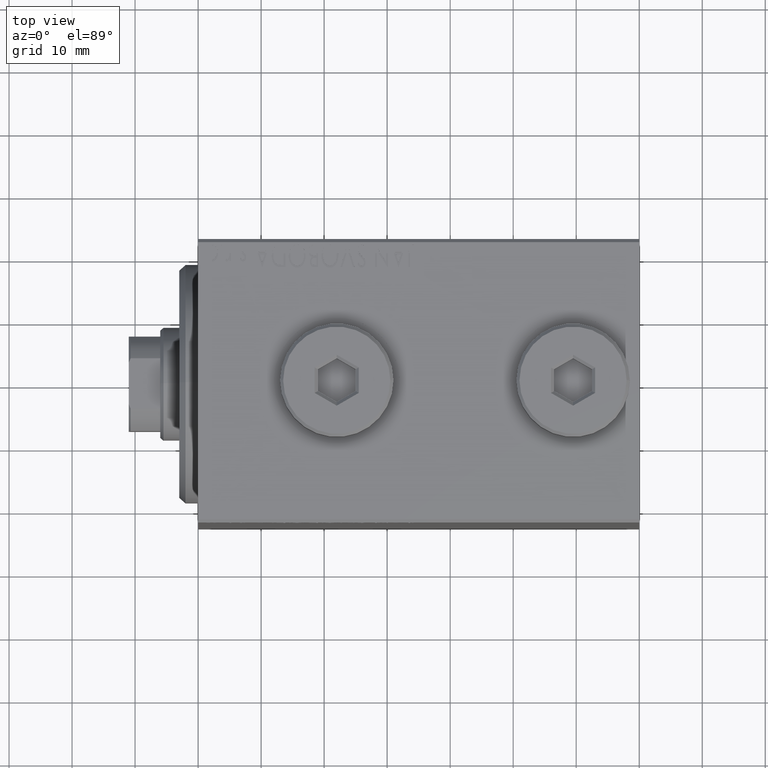
[diagram: clean part render]
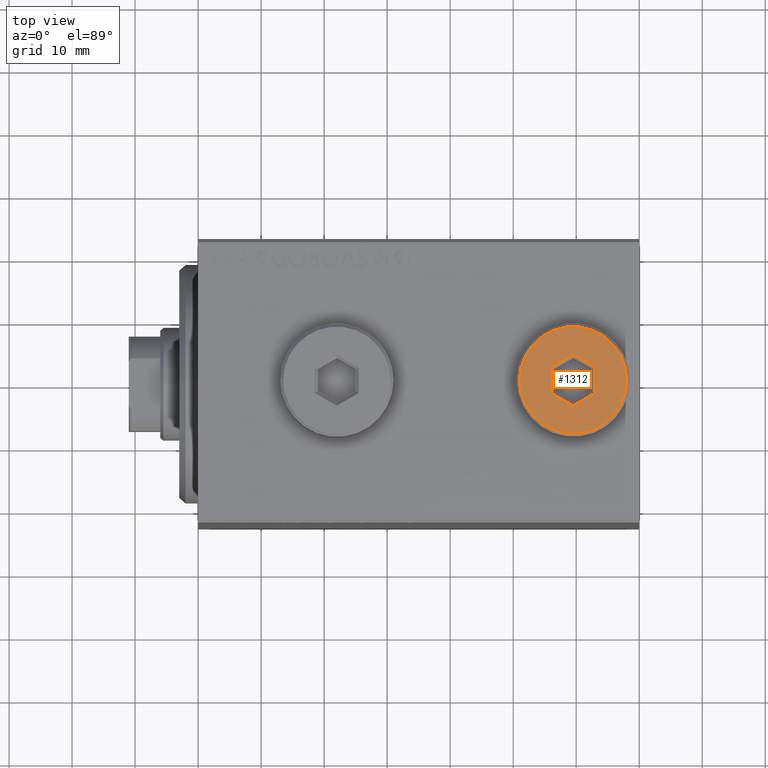
[diagram: same view with one face highlighted and labeled with its STEP entity id]
A machine part, top view. The second image highlights one B-rep face of the part: STEP entity #1312.
In plain terms, the highlighted planar face has unit normal (0, 0, 1).
Its self-contained STEP definition (entity closure, byte-faithful):
#1067 = AXIS2_PLACEMENT_3D ( 'NONE', #42776, #43236, #11640 ) ;
#1312 = ADVANCED_FACE ( 'NONE', ( #28490, #4278 ), #32198, .T. ) ;
#1509 = ORIENTED_EDGE ( 'NONE', *, *, #42571, .T. ) ;
#1737 = DIRECTION ( 'NONE',  ( 0.000000000000000000, 1.000000000000000000, 0.000000000000000000 ) ) ;
#1904 = CARTESIAN_POINT ( 'NONE',  ( -3.250000000000003109, -2.165063509461102598, 5.000000000000000000 ) ) ;
#1948 = EDGE_CURVE ( 'NONE', #20475, #13111, #35739, .T. ) ;
#2230 = LINE ( 'NONE', #30118, #13683 ) ;
#2308 = CARTESIAN_POINT ( 'NONE',  ( 0.000000000000000000, 0.000000000000000000, 5.000000000000000000 ) ) ;
#2356 = LINE ( 'NONE', #1904, #43961 ) ;
#3824 = CARTESIAN_POINT ( 'NONE',  ( 0.000000000000000000, 0.000000000000000000, 5.000000000000000000 ) ) ;
#4278 = FACE_OUTER_BOUND ( 'NONE', #22563, .T. ) ;
#5645 = VECTOR ( 'NONE', #19831, 1000.000000000000000 ) ;
#6257 = LINE ( 'NONE', #44762, #27446 ) ;
#6337 = ORIENTED_EDGE ( 'NONE', *, *, #28788, .T. ) ;
#7468 = EDGE_CURVE ( 'NONE', #43936, #39849, #19601, .T. ) ;
#11640 = DIRECTION ( 'NONE',  ( 1.000000000000000000, 0.000000000000000000, -0.000000000000000000 ) ) ;
#12089 = LINE ( 'NONE', #15541, #12631 ) ;
#12625 = EDGE_CURVE ( 'NONE', #39849, #23470, #2356, .T. ) ;
#12631 = VECTOR ( 'NONE', #1737, 1000.000000000000000 ) ;
#13111 = VERTEX_POINT ( 'NONE', #33334 ) ;
#13683 = VECTOR ( 'NONE', #43494, 1000.000000000000000 ) ;
#14480 = CARTESIAN_POINT ( 'NONE',  ( -3.500000000000006661, -2.020725942163694278, 5.000000000000000000 ) ) ;
#14644 = DIRECTION ( 'NONE',  ( 1.000000000000000000, 0.000000000000000000, 0.000000000000000000 ) ) ;
#15141 = CIRCLE ( 'NONE', #21045, 8.500000000000010658 ) ;
#15411 = ORIENTED_EDGE ( 'NONE', *, *, #7468, .T. ) ;
#15541 = CARTESIAN_POINT ( 'NONE',  ( -3.500000000000006661, 1.732050807568878081, 5.000000000000000000 ) ) ;
#15817 = EDGE_CURVE ( 'NONE', #23470, #30399, #12089, .T. ) ;
#17350 = ORIENTED_EDGE ( 'NONE', *, *, #27168, .T. ) ;
#18406 = CARTESIAN_POINT ( 'NONE',  ( 3.500000000000006661, -2.020725942163693833, 5.000000000000000000 ) ) ;
#19512 = CARTESIAN_POINT ( 'NONE',  ( -0.2500000000000027756, 3.897114317029978459, 5.000000000000000000 ) ) ;
#19601 = LINE ( 'NONE', #44954, #5645 ) ;
#19623 = EDGE_LOOP ( 'NONE', ( #41354, #42933, #1509, #6337, #15411, #42807 ) ) ;
#19630 = DIRECTION ( 'NONE',  ( -0.8660254037844385966, 0.4999999999999999445, 0.000000000000000000 ) ) ;
#19831 = DIRECTION ( 'NONE',  ( -0.8660254037844387076, -0.4999999999999998890, 0.000000000000000000 ) ) ;
#19999 = ORIENTED_EDGE ( 'NONE', *, *, #1948, .T. ) ;
#20475 = VERTEX_POINT ( 'NONE', #39830 ) ;
#21045 = AXIS2_PLACEMENT_3D ( 'NONE', #3824, #25021, #14644 ) ;
#22563 = EDGE_LOOP ( 'NONE', ( #19999, #17350 ) ) ;
#22964 = VECTOR ( 'NONE', #33631, 1000.000000000000000 ) ;
#23470 = VERTEX_POINT ( 'NONE', #14480 ) ;
#25021 = DIRECTION ( 'NONE',  ( 0.000000000000000000, 0.000000000000000000, 1.000000000000000000 ) ) ;
#27168 = EDGE_CURVE ( 'NONE', #13111, #20475, #15141, .T. ) ;
#27446 = VECTOR ( 'NONE', #30248, 1000.000000000000000 ) ;
#28490 = FACE_BOUND ( 'NONE', #19623, .T. ) ;
#28566 = CARTESIAN_POINT ( 'NONE',  ( -3.500000000000006661, 2.020725942163692945, 5.000000000000000000 ) ) ;
#28788 = EDGE_CURVE ( 'NONE', #42541, #43936, #2230, .T. ) ;
#30118 = CARTESIAN_POINT ( 'NONE',  ( 3.500000000000006661, -1.732050807568878303, 5.000000000000000000 ) ) ;
#30248 = DIRECTION ( 'NONE',  ( 0.8660254037844387076, -0.4999999999999998890, 0.000000000000000000 ) ) ;
#30399 = VERTEX_POINT ( 'NONE', #28566 ) ;
#30434 = DIRECTION ( 'NONE',  ( 1.000000000000000000, 0.000000000000000000, 0.000000000000000000 ) ) ;
#30604 = LINE ( 'NONE', #19512, #22964 ) ;
#31238 = CARTESIAN_POINT ( 'NONE',  ( 1.590596867181068292E-15, 4.041451884327386779, 5.000000000000000000 ) ) ;
#32198 = PLANE ( 'NONE',  #1067 ) ;
#32815 = CARTESIAN_POINT ( 'NONE',  ( 3.500000000000006661, 2.020725942163694722, 5.000000000000000000 ) ) ;
#33334 = CARTESIAN_POINT ( 'NONE',  ( 8.500000000000010658, 1.071565949253934716E-15, 5.000000000000000000 ) ) ;
#33631 = DIRECTION ( 'NONE',  ( 0.8660254037844387076, 0.4999999999999998335, 0.000000000000000000 ) ) ;
#35739 = CIRCLE ( 'NONE', #36456, 8.500000000000010658 ) ;
#36456 = AXIS2_PLACEMENT_3D ( 'NONE', #2308, #41263, #30434 ) ;
#36725 = EDGE_CURVE ( 'NONE', #30399, #44616, #30604, .T. ) ;
#39830 = CARTESIAN_POINT ( 'NONE',  ( -8.500000000000010658, 0.000000000000000000, 5.000000000000000000 ) ) ;
#39849 = VERTEX_POINT ( 'NONE', #40828 ) ;
#40828 = CARTESIAN_POINT ( 'NONE',  ( -1.006139216460143630E-15, -4.041451884327387667, 5.000000000000000000 ) ) ;
#41263 = DIRECTION ( 'NONE',  ( 0.000000000000000000, 0.000000000000000000, 1.000000000000000000 ) ) ;
#41354 = ORIENTED_EDGE ( 'NONE', *, *, #15817, .T. ) ;
#42541 = VERTEX_POINT ( 'NONE', #32815 ) ;
#42571 = EDGE_CURVE ( 'NONE', #44616, #42541, #6257, .T. ) ;
#42776 = CARTESIAN_POINT ( 'NONE',  ( 0.000000000000000000, 0.000000000000000000, 5.000000000000000000 ) ) ;
#42807 = ORIENTED_EDGE ( 'NONE', *, *, #12625, .T. ) ;
#42933 = ORIENTED_EDGE ( 'NONE', *, *, #36725, .T. ) ;
#43236 = DIRECTION ( 'NONE',  ( 0.000000000000000000, 0.000000000000000000, 1.000000000000000000 ) ) ;
#43494 = DIRECTION ( 'NONE',  ( 0.000000000000000000, -1.000000000000000000, 0.000000000000000000 ) ) ;
#43936 = VERTEX_POINT ( 'NONE', #18406 ) ;
#43961 = VECTOR ( 'NONE', #19630, 1000.000000000000114 ) ;
#44616 = VERTEX_POINT ( 'NONE', #31238 ) ;
#44762 = CARTESIAN_POINT ( 'NONE',  ( 3.250000000000003109, 2.165063509461103042, 5.000000000000000000 ) ) ;
#44954 = CARTESIAN_POINT ( 'NONE',  ( 0.2500000000000027756, -3.897114317029979347, 5.000000000000000000 ) ) ;